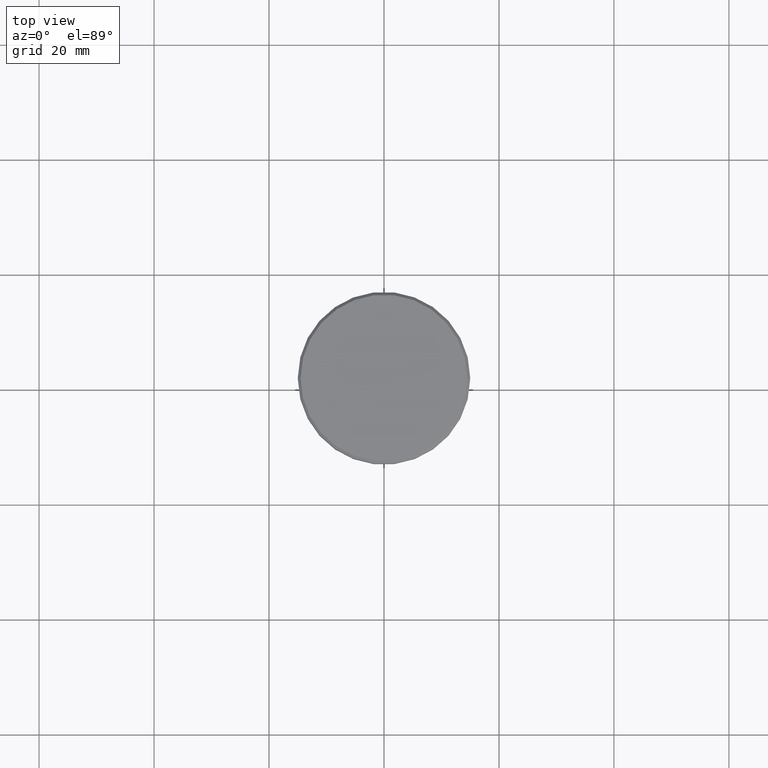
[diagram: clean part render]
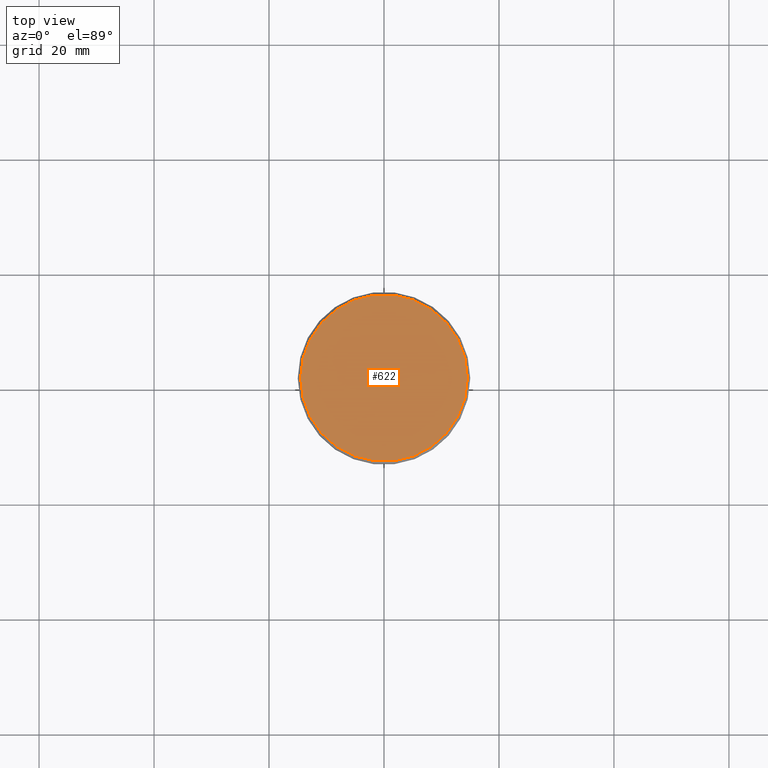
[diagram: same view with one face highlighted and labeled with its STEP entity id]
A machine part, top view. The second image highlights one B-rep face of the part: STEP entity #622.
In plain terms, the highlighted planar face has unit normal (0, -0, 1).
Its self-contained STEP definition (entity closure, byte-faithful):
#24 = CARTESIAN_POINT ( 'NONE',  ( -14.49999999999999645, 0.000000000000000000, 0.000000000000000000 ) ) ;
#95 = DIRECTION ( 'NONE',  ( 1.000000000000000000, 0.000000000000000000, 0.000000000000000000 ) ) ;
#176 = CIRCLE ( 'NONE', #478, 14.49999999999999645 ) ;
#190 = AXIS2_PLACEMENT_3D ( 'NONE', #243, #674, #515 ) ;
#199 = CARTESIAN_POINT ( 'NONE',  ( 0.000000000000000000, 0.000000000000000000, 0.000000000000000000 ) ) ;
#227 = CARTESIAN_POINT ( 'NONE',  ( 0.000000000000000000, 0.000000000000000000, 0.000000000000000000 ) ) ;
#243 = CARTESIAN_POINT ( 'NONE',  ( 0.000000000000000000, 0.000000000000000000, 0.000000000000000000 ) ) ;
#247 = VERTEX_POINT ( 'NONE', #24 ) ;
#278 = FACE_OUTER_BOUND ( 'NONE', #453, .T. ) ;
#413 = EDGE_CURVE ( 'NONE', #247, #640, #797, .T. ) ;
#453 = EDGE_LOOP ( 'NONE', ( #830, #962 ) ) ;
#478 = AXIS2_PLACEMENT_3D ( 'NONE', #227, #586, #1132 ) ;
#515 = DIRECTION ( 'NONE',  ( 1.000000000000000000, 0.000000000000000000, 0.000000000000000000 ) ) ;
#556 = DIRECTION ( 'NONE',  ( 0.000000000000000000, -0.000000000000000000, 1.000000000000000000 ) ) ;
#586 = DIRECTION ( 'NONE',  ( -0.000000000000000000, -0.000000000000000000, 1.000000000000000000 ) ) ;
#622 = ADVANCED_FACE ( 'NONE', ( #278 ), #1011, .T. ) ;
#640 = VERTEX_POINT ( 'NONE', #737 ) ;
#642 = AXIS2_PLACEMENT_3D ( 'NONE', #199, #556, #95 ) ;
#674 = DIRECTION ( 'NONE',  ( -0.000000000000000000, -0.000000000000000000, 1.000000000000000000 ) ) ;
#698 = EDGE_CURVE ( 'NONE', #640, #247, #176, .T. ) ;
#737 = CARTESIAN_POINT ( 'NONE',  ( 14.49999999999999645, 1.806354028742345802E-15, 0.000000000000000000 ) ) ;
#797 = CIRCLE ( 'NONE', #190, 14.49999999999999645 ) ;
#830 = ORIENTED_EDGE ( 'NONE', *, *, #413, .T. ) ;
#962 = ORIENTED_EDGE ( 'NONE', *, *, #698, .T. ) ;
#1011 = PLANE ( 'NONE',  #642 ) ;
#1132 = DIRECTION ( 'NONE',  ( 1.000000000000000000, 0.000000000000000000, 0.000000000000000000 ) ) ;